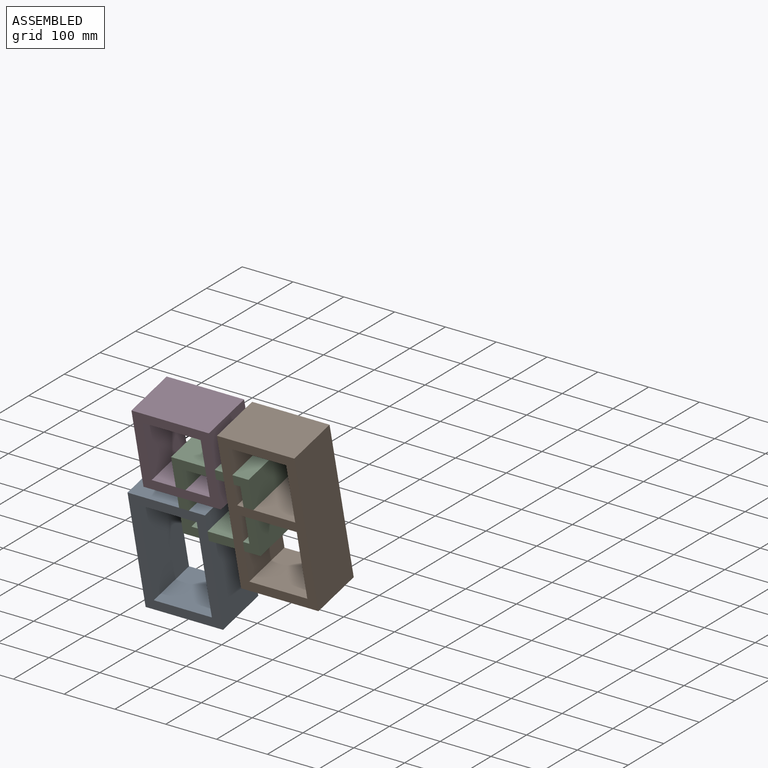
[diagram: assembled view]
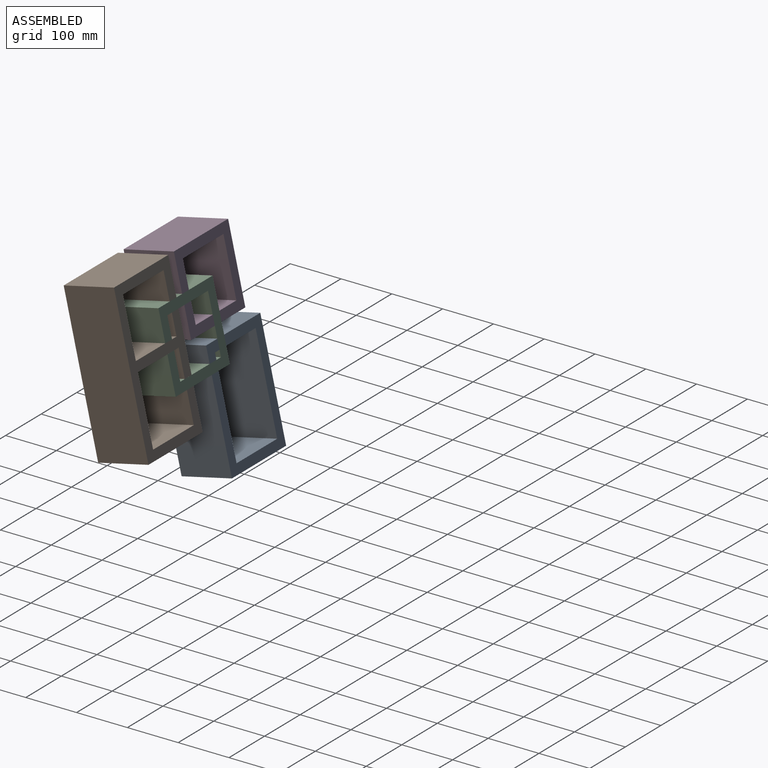
[diagram: assembled view, second angle]
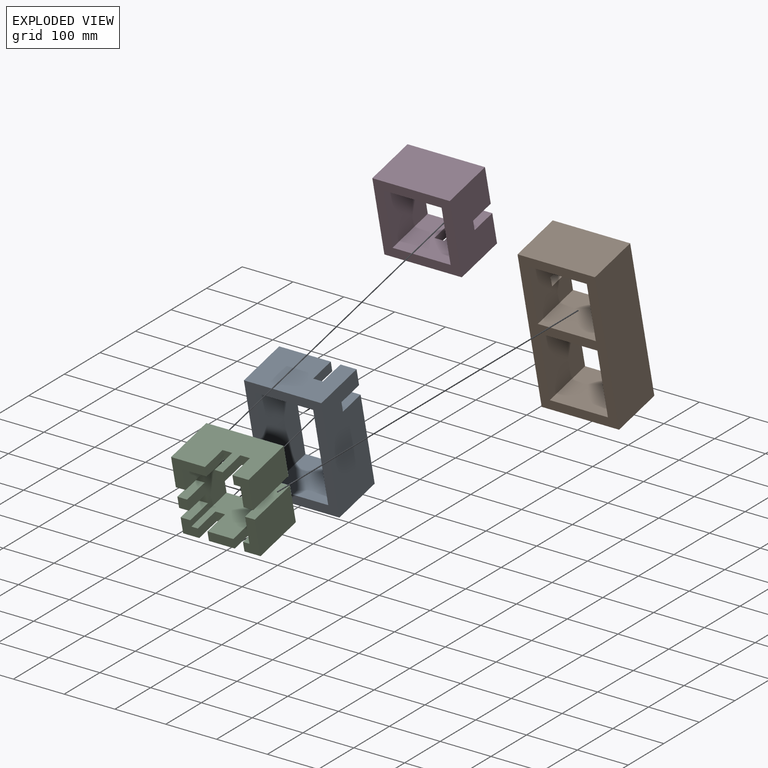
[diagram: exploded view]
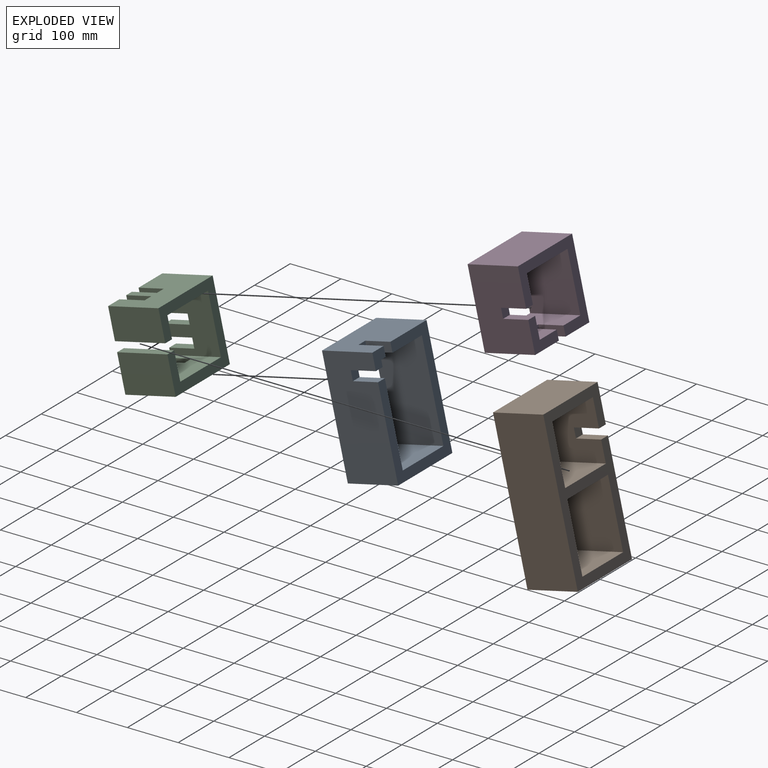
[diagram: exploded view, second angle]
ASSEMBLY  parts=4 mates=3
PART A: 17 faces, bbox 228.6x101.6x152.4 mm
  f0: plane 31.75x31.75mm, normal (0,1,0), area 846.8mm2, adj f2,f3,f6,f7,f12,f16
  f1: plane 190.5x101.6mm, normal (0,0,-1), area 19354.8mm2, adj f2,f8,f9,f10
  f2: plane 114.3x101.6mm, normal (-1,0,0), area 10645.1mm2, adj f0,f1,f3,f9,f10,f11,f12,f13
  f3: plane 190.5x101.6mm, normal (0,0,1), area 18387.1mm2, adj f0,f2,f8,f9,f10,f14,f15,f16
  f4: plane 228.6x101.6mm, normal (0,0,1), area 23225.8mm2, adj f5,f7,f9,f10
  f5: plane 152.4x101.6mm, normal (-1,0,0), area 15483.8mm2, adj f4,f6,f9,f10
  f6: plane 228.6x101.6mm, normal (0,0,-1), area 22258mm2, adj f0,f5,f7,f9,f10,f14,f15,f16
  f7: plane 152.4x101.6mm, normal (1,0,0), area 14516.1mm2, adj f0,f4,f6,f9,f10,f11,f12,f13
  f8: plane 114.3x101.6mm, normal (1,0,0), area 11612.9mm2, adj f1,f3,f9,f10
  f9: plane 228.6x152.4mm, normal (0,-1,0), area 13064.5mm2, adj f1,f2,f3,f4,f5,f6,f7,f8
  f10: plane 228.6x152.4mm, normal (0,1,0), area 11491.9mm2, adj f1,f2,f3,f4,f5,f6,f7,f8
  f11: plane 19.05x19.05mm, normal (0,1,0), area 362.9mm2, adj f2,f7,f12,f13
  f12: plane 50.8x19.05mm, normal (0,0,1), area 967.7mm2, adj f0,f2,f7,f11
  f13: plane 50.8x19.05mm, normal (0,0,-1), area 967.7mm2, adj f2,f7,f10,f11
  f14: plane 19.05x19.05mm, normal (0,1,0), area 362.9mm2, adj f3,f6,f15,f16
  f15: plane 50.8x19.05mm, normal (1,0,0), area 967.7mm2, adj f3,f6,f10,f14
  f16: plane 50.8x19.05mm, normal (-1,0,0), area 967.7mm2, adj f0,f3,f6,f14
PART B: 17 faces, bbox 152.4x101.6x304.8 mm
  f0: plane 114.3x101.6mm, normal (1,0,0), area 10645.1mm2, adj f1,f3,f12,f13,f14,f15,f16
  f1: plane 114.3x101.6mm, normal (0,0,-1), area 11612.9mm2, adj f0,f2,f12,f13
  f2: plane 114.3x101.6mm, normal (-1,0,0), area 11612.9mm2, adj f1,f3,f12,f13
  f3: plane 114.3x101.6mm, normal (0,0,1), area 11612.9mm2, adj f0,f2,f12,f13
  f4: plane 133.35x101.6mm, normal (1,0,0), area 13548.4mm2, adj f5,f10,f12,f13
  f5: plane 114.3x101.6mm, normal (0,0,-1), area 11612.9mm2, adj f4,f6,f12,f13
  f6: plane 133.35x101.6mm, normal (-1,0,0), area 13548.4mm2, adj f5,f10,f12,f13
  f7: plane 152.4x101.6mm, normal (0,0,1), area 15483.8mm2, adj f8,f11,f12,f13
  f8: plane 304.8x101.6mm, normal (-1,0,0), area 29999.9mm2, adj f7,f9,f12,f13,f14,f15,f16
  f9: plane 152.4x101.6mm, normal (0,0,-1), area 15483.8mm2, adj f8,f11,f12,f13
  f10: plane 114.3x101.6mm, normal (0,0,1), area 11612.9mm2, adj f4,f6,f12,f13
  f11: plane 304.8x101.6mm, normal (1,0,0), area 30967.7mm2, adj f7,f9,f12,f13
  f12: plane 304.8x152.4mm, normal (0,-1,0), area 18145.1mm2, adj f0,f1,f2,f3,f4,f5,f6,f7
  f13: plane 304.8x152.4mm, normal (0,1,0), area 17782.2mm2, adj f0,f1,f2,f3,f4,f5,f6,f7
  f14: plane 50.8x19.05mm, normal (0,0,-1), area 967.7mm2, adj f0,f8,f13,f16
  f15: plane 50.8x19.05mm, normal (0,0,1), area 967.7mm2, adj f0,f8,f13,f16
  f16: plane 19.05x19.05mm, normal (0,1,0), area 362.9mm2, adj f0,f8,f14,f15
PART C: 38 faces, bbox 152.4x101.6x152.4 mm
  f0: plane 114.3x101.6mm, normal (-1,0,0), area 9676.9mm2, adj f2,f5,f12,f13,f14,f17,f18,f19
  f1: plane 152.4x101.6mm, normal (1,0,0), area 13547.8mm2, adj f2,f5,f12,f15,f16,f17,f18,f19
  f2: plane 60.33x31.71mm, normal (0,1,0), area 1390.4mm2, adj f0,f1,f14,f15,f33,f35
  f3: plane 101.6x73.03mm, normal (0,0,1), area 7419.3mm2, adj f5,f6,f11,f34
  f4: plane 101.6x53.98mm, normal (0,0,-1), area 5483.9mm2, adj f5,f6,f10,f34
  f5: plane 152.4x152.4mm, normal (0,-1,0), area 9798.4mm2, adj f0,f1,f3,f4,f10,f11,f13,f14
  f6: plane 73.03x31.75mm, normal (0,1,0), area 1633.1mm2, adj f3,f4,f10,f11,f28,f34
  f7: plane 22.23x19.05mm, normal (0,1,0), area 423.4mm2, adj f13,f16,f22,f32
  f8: plane 50.8x19.05mm, normal (0,1,0), area 967.7mm2, adj f10,f11,f26,f29
  f9: plane 31.75x31.75mm, normal (0,1,0), area 846.8mm2, adj f10,f11,f13,f16,f24,f31
  f10: plane 114.3x101.6mm, normal (1,0,0), area 9677.4mm2, adj f4,f5,f6,f8,f9,f13,f24,f25
  f11: plane 152.4x101.6mm, normal (-1,0,0), area 13548.4mm2, adj f3,f5,f6,f8,f9,f16,f24,f25
  f12: plane 66.68x60.33mm, normal (0,1,0), area 2056.4mm2, adj f0,f1,f13,f16,f19,f23
  f13: plane 114.3x101.6mm, normal (0,0,1), area 9677.4mm2, adj f0,f5,f7,f9,f10,f12,f21,f22
  f14: plane 101.6x41.28mm, normal (0,0,-1), area 4193.5mm2, adj f0,f2,f5,f33
  f15: plane 101.6x60.33mm, normal (0,0,1), area 6129mm2, adj f1,f2,f5,f33
  f16: plane 152.4x101.6mm, normal (0,0,-1), area 13548.4mm2, adj f1,f5,f7,f9,f11,f12,f21,f22
  f17: plane 19.05x15.88mm, normal (0,1,0), area 302.4mm2, adj f0,f1,f20,f37
  f18: plane 19.05x19.05mm, normal (0,1,0), area 362.9mm2, adj f0,f1,f19,f20
  f19: plane 50.8x19.05mm, normal (0,0,1), area 967.7mm2, adj f0,f1,f12,f18
  f20: plane 50.8x19.05mm, normal (0,0,-1), area 967.7mm2, adj f0,f1,f17,f18
  f21: plane 19.05x19.05mm, normal (0,1,0), area 362.9mm2, adj f13,f16,f22,f23
  f22: plane 50.8x19.05mm, normal (1,0,0), area 967.7mm2, adj f7,f13,f16,f21
  f23: plane 50.8x19.05mm, normal (-1,0,0), area 967.7mm2, adj f12,f13,f16,f21
  f24: plane 50.8x19.05mm, normal (0,0,1), area 967.7mm2, adj f9,f10,f11,f25
  f25: plane 19.05x19.05mm, normal (0,1,0), area 362.9mm2, adj f10,f11,f24,f26
  f26: plane 50.8x19.05mm, normal (0,0,-1), area 967.7mm2, adj f8,f10,f11,f25
  f27: plane 19.05x19.05mm, normal (0,1,0), area 362.9mm2, adj f10,f11,f28,f29
  f28: plane 50.8x19.05mm, normal (0,0,-1), area 967.7mm2, adj f6,f10,f11,f27
  f29: plane 50.8x19.05mm, normal (0,0,1), area 967.7mm2, adj f8,f10,f11,f27
  f30: plane 19.05x19.05mm, normal (0,1,0), area 362.9mm2, adj f13,f16,f31,f32
  f31: plane 50.8x19.05mm, normal (1,0,0), area 967.7mm2, adj f9,f13,f16,f30
  f32: plane 50.8x19.05mm, normal (-1,0,0), area 967.7mm2, adj f7,f13,f16,f30
  f33: plane 101.6x19.05mm, normal (-1,0,0), area 1935.5mm2, adj f2,f5,f14,f15
  f34: plane 101.6x19.05mm, normal (1,0,0), area 1935.5mm2, adj f3,f4,f5,f6
  f35: plane 50.78x19.05mm, normal (0,0,-1), area 967.3mm2, adj f0,f1,f2,f36
  f36: plane 19.05x19.05mm, normal (0,1,0), area 362.9mm2, adj f0,f1,f35,f37
  f37: plane 50.78x19.05mm, normal (0,0,1), area 967.3mm2, adj f0,f1,f17,f36
PART D: 17 faces, bbox 152.4x101.6x152.4 mm
  f0: plane 66.68x60.33mm, normal (0,1,0), area 2056.4mm2, adj f3,f6,f7,f8,f12,f16
  f1: plane 114.3x101.6mm, normal (1,0,0), area 11612.9mm2, adj f2,f8,f9,f10
  f2: plane 114.3x101.6mm, normal (0,0,-1), area 11612.9mm2, adj f1,f3,f9,f10
  f3: plane 114.3x101.6mm, normal (-1,0,0), area 10645.1mm2, adj f0,f2,f8,f9,f10,f11,f12,f13
  f4: plane 152.4x101.6mm, normal (0,0,1), area 15483.8mm2, adj f5,f7,f9,f10
  f5: plane 152.4x101.6mm, normal (-1,0,0), area 15483.8mm2, adj f4,f6,f9,f10
  f6: plane 152.4x101.6mm, normal (0,0,-1), area 14516.1mm2, adj f0,f5,f7,f9,f10,f14,f15,f16
  f7: plane 152.4x101.6mm, normal (1,0,0), area 14516.1mm2, adj f0,f4,f6,f9,f10,f11,f12,f13
  f8: plane 114.3x101.6mm, normal (0,0,1), area 10645.1mm2, adj f0,f1,f3,f9,f10,f14,f15,f16
  f9: plane 152.4x152.4mm, normal (0,-1,0), area 10161.3mm2, adj f1,f2,f3,f4,f5,f6,f7,f8
  f10: plane 152.4x152.4mm, normal (0,1,0), area 7379mm2, adj f1,f2,f3,f4,f5,f6,f7,f8
  f11: plane 19.05x19.05mm, normal (0,1,0), area 362.9mm2, adj f3,f7,f12,f13
  f12: plane 50.8x19.05mm, normal (0,0,1), area 967.7mm2, adj f0,f3,f7,f11
  f13: plane 50.8x19.05mm, normal (0,0,-1), area 967.7mm2, adj f3,f7,f10,f11
  f14: plane 19.05x19.05mm, normal (0,1,0), area 362.9mm2, adj f6,f8,f15,f16
  f15: plane 50.8x19.05mm, normal (1,0,0), area 967.7mm2, adj f6,f8,f10,f14
  f16: plane 50.8x19.05mm, normal (-1,0,0), area 967.7mm2, adj f0,f6,f8,f14
PLACE A rot(axis=(0.11,-0.99,-0.11),90.7deg) t=(-188.01,-219.31,-90.5)mm
PLACE B rot(axis=(1,0,0),12.9deg) t=(4.56,-214.9,-109.93)mm
PLACE C rot(axis=(-0.7,0.08,-0.7),170.9deg) t=(-103.02,-340.98,-14.07)mm
PLACE D rot(axis=(1,0,0),12.9deg) t=(-85.19,-237.96,-8.83)mm
MATE fastened C.f36 <-> B.f16  axis (0,-0.97,-0.22) through (-59.79,-289.36,-12.05)mm
MATE fastened A.f11 <-> C.f30  axis (0,0.97,0.22) through (-161.39,-266.72,-111.09)mm
MATE fastened D.f14 <-> C.f21  axis (0,0.97,0.22) through (-161.39,-275.91,-70.86)mm
